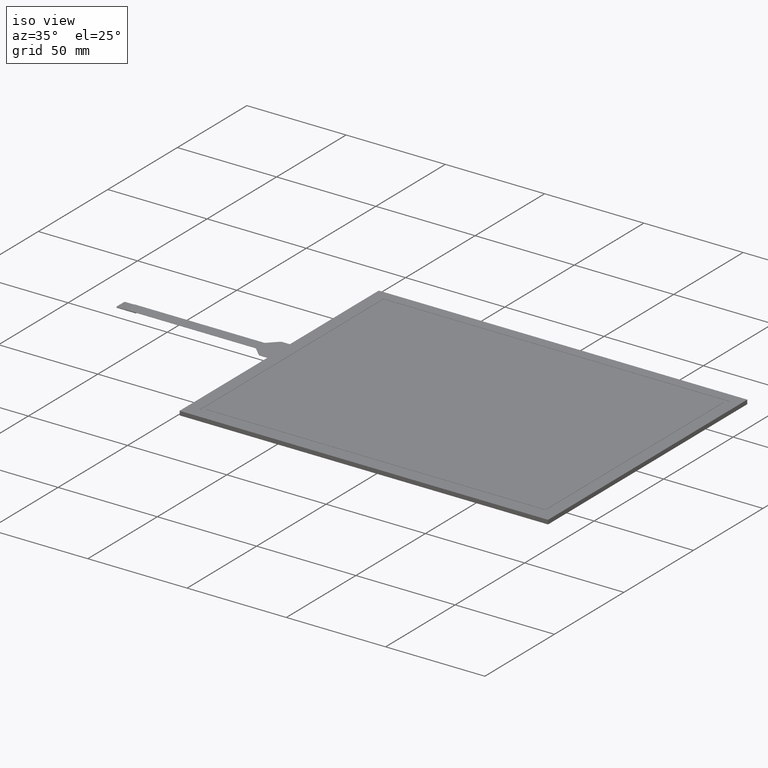
[diagram: clean part render]
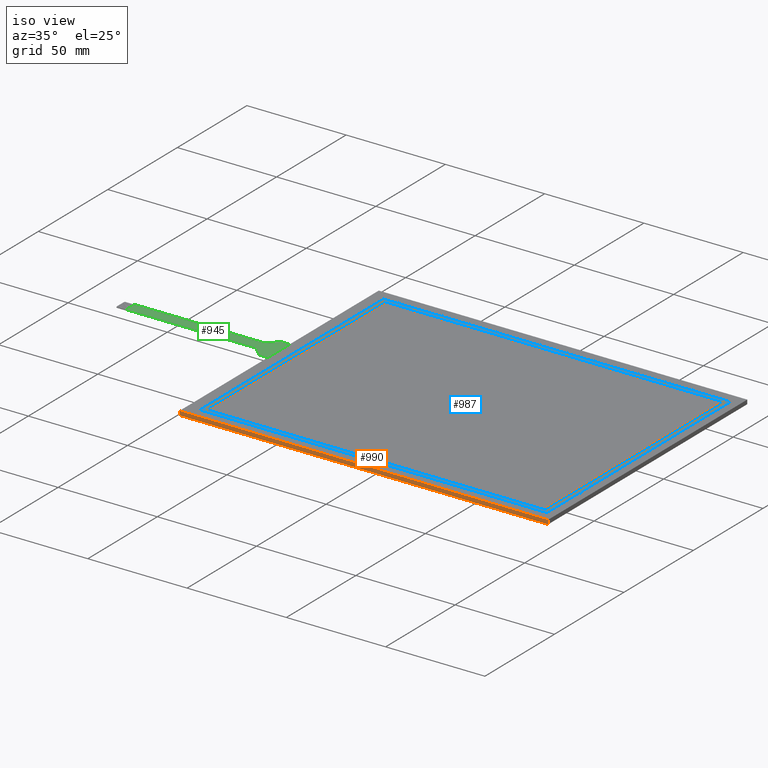
[diagram: same view with three faces highlighted in distinct colors, each labeled with its STEP entity id]
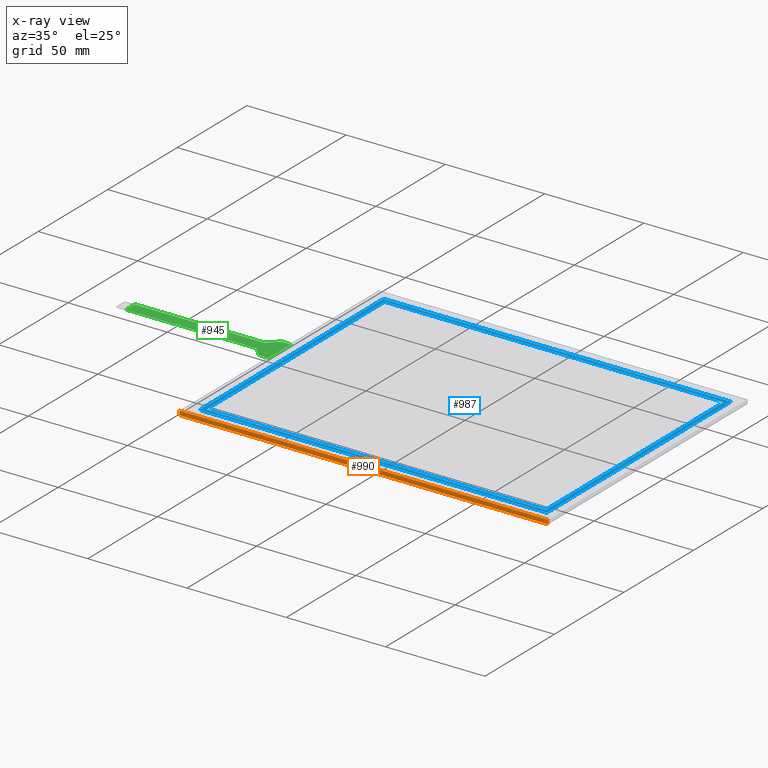
[diagram: x-ray of the same camera — body ghosted, the three highlighted faces saturated]
A machine part, iso view with three faces highlighted in distinct colors.
The next image is the same camera in x-ray (body ghosted, the three faces saturated) — at least one of them is partly hidden behind the body in this view.
Their STEP definitions:

[orange] entity #990 — the highlighted planar face has unit normal (0, -1, 0).
#58=PLANE('',#1073);
#109=FACE_OUTER_BOUND('',#163,.T.);
#163=EDGE_LOOP('',(#918,#919,#920,#921));
#284=LINE('',#1594,#410);
#288=LINE('',#1601,#414);
#289=LINE('',#1604,#415);
#290=LINE('',#1605,#416);
#410=VECTOR('',#1310,10.);
#414=VECTOR('',#1316,10.);
#415=VECTOR('',#1319,10.);
#416=VECTOR('',#1320,10.);
#518=VERTEX_POINT('',#1591);
#519=VERTEX_POINT('',#1593);
#521=VERTEX_POINT('',#1599);
#522=VERTEX_POINT('',#1603);
#652=EDGE_CURVE('',#518,#519,#284,.T.);
#656=EDGE_CURVE('',#518,#521,#288,.T.);
#657=EDGE_CURVE('',#522,#521,#289,.T.);
#658=EDGE_CURVE('',#519,#522,#290,.T.);
#918=ORIENTED_EDGE('',*,*,#652,.F.);
#919=ORIENTED_EDGE('',*,*,#656,.T.);
#920=ORIENTED_EDGE('',*,*,#657,.F.);
#921=ORIENTED_EDGE('',*,*,#658,.F.);
#990=ADVANCED_FACE('',(#109),#58,.T.);
#1073=AXIS2_PLACEMENT_3D('',#1602,#1317,#1318);
#1310=DIRECTION('',(1.,1.91417762866406E-16,0.));
#1316=DIRECTION('',(0.,0.,-1.));
#1317=DIRECTION('center_axis',(1.91417762866406E-16,-1.,0.));
#1318=DIRECTION('ref_axis',(-1.,-1.91417762866406E-16,0.));
#1319=DIRECTION('',(-1.,-1.91417762866406E-16,0.));
#1320=DIRECTION('',(0.,0.,-1.));
#1591=CARTESIAN_POINT('',(-93.65,-71.65,0.));
#1593=CARTESIAN_POINT('',(91.95,-71.65,0.));
#1594=CARTESIAN_POINT('',(-93.65,-71.65,0.));
#1599=CARTESIAN_POINT('',(-93.65,-71.65,-2.1));
#1601=CARTESIAN_POINT('',(-93.65,-71.65,0.));
#1602=CARTESIAN_POINT('Origin',(91.95,-71.65,0.));
#1603=CARTESIAN_POINT('',(91.95,-71.65,-2.1));
#1604=CARTESIAN_POINT('',(-93.65,-71.65,-2.1));
#1605=CARTESIAN_POINT('',(91.95,-71.65,0.));

[blue] entity #987 — the highlighted planar face has unit normal (0, 0, -1).
#15=FACE_BOUND('',#158,.T.);
#55=PLANE('',#1070);
#106=FACE_OUTER_BOUND('',#157,.T.);
#157=EDGE_LOOP('',(#894,#895,#896,#897));
#158=EDGE_LOOP('',(#898,#899,#900,#901));
#260=LINE('',#1545,#386);
#264=LINE('',#1552,#390);
#267=LINE('',#1558,#393);
#269=LINE('',#1561,#395);
#272=LINE('',#1569,#398);
#276=LINE('',#1576,#402);
#279=LINE('',#1582,#405);
#281=LINE('',#1585,#407);
#386=VECTOR('',#1268,10.);
#390=VECTOR('',#1274,10.);
#393=VECTOR('',#1279,10.);
#395=VECTOR('',#1283,10.);
#398=VECTOR('',#1288,10.);
#402=VECTOR('',#1294,10.);
#405=VECTOR('',#1299,10.);
#407=VECTOR('',#1303,10.);
#502=VERTEX_POINT('',#1542);
#503=VERTEX_POINT('',#1544);
#505=VERTEX_POINT('',#1550);
#507=VERTEX_POINT('',#1556);
#510=VERTEX_POINT('',#1566);
#511=VERTEX_POINT('',#1568);
#513=VERTEX_POINT('',#1574);
#515=VERTEX_POINT('',#1580);
#628=EDGE_CURVE('',#502,#503,#260,.T.);
#632=EDGE_CURVE('',#505,#502,#264,.T.);
#635=EDGE_CURVE('',#507,#505,#267,.T.);
#637=EDGE_CURVE('',#503,#507,#269,.T.);
#640=EDGE_CURVE('',#510,#511,#272,.T.);
#644=EDGE_CURVE('',#513,#510,#276,.T.);
#647=EDGE_CURVE('',#515,#513,#279,.T.);
#649=EDGE_CURVE('',#511,#515,#281,.T.);
#894=ORIENTED_EDGE('',*,*,#649,.F.);
#895=ORIENTED_EDGE('',*,*,#640,.F.);
#896=ORIENTED_EDGE('',*,*,#644,.F.);
#897=ORIENTED_EDGE('',*,*,#647,.F.);
#898=ORIENTED_EDGE('',*,*,#637,.F.);
#899=ORIENTED_EDGE('',*,*,#628,.F.);
#900=ORIENTED_EDGE('',*,*,#632,.F.);
#901=ORIENTED_EDGE('',*,*,#635,.F.);
#987=ADVANCED_FACE('',(#106,#15),#55,.F.);
#1070=AXIS2_PLACEMENT_3D('',#1586,#1304,#1305);
#1268=DIRECTION('',(1.,5.19706506553613E-17,0.));
#1274=DIRECTION('',(0.,-1.,0.));
#1279=DIRECTION('',(-1.,5.19706506553613E-17,0.));
#1283=DIRECTION('',(0.,1.,0.));
#1288=DIRECTION('',(-2.68534669599433E-16,1.,0.));
#1294=DIRECTION('',(-1.,-1.52346212641531E-16,0.));
#1299=DIRECTION('',(0.,-1.,0.));
#1303=DIRECTION('',(1.,0.,0.));
#1304=DIRECTION('center_axis',(0.,0.,-1.));
#1305=DIRECTION('ref_axis',(-1.,0.,0.));
#1542=CARTESIAN_POINT('',(-85.45,-64.15,-0.1));
#1544=CARTESIAN_POINT('',(85.45,-64.15,-0.1));
#1545=CARTESIAN_POINT('',(85.45,-64.15,-0.1));
#1550=CARTESIAN_POINT('',(-85.45,64.15,-0.1));
#1552=CARTESIAN_POINT('',(-85.45,-64.15,-0.1));
#1556=CARTESIAN_POINT('',(85.45,64.15,-0.1));
#1558=CARTESIAN_POINT('',(-85.45,64.15,-0.1));
#1561=CARTESIAN_POINT('',(85.45,64.15,-0.1));
#1566=CARTESIAN_POINT('',(-87.45,-66.15,-0.1));
#1568=CARTESIAN_POINT('',(-87.45,66.15,-0.1));
#1569=CARTESIAN_POINT('',(-87.45,66.15,-0.1));
#1574=CARTESIAN_POINT('',(87.45,-66.15,-0.1));
#1576=CARTESIAN_POINT('',(-87.45,-66.15,-0.1));
#1580=CARTESIAN_POINT('',(87.45,66.15,-0.1));
#1582=CARTESIAN_POINT('',(87.45,-66.15,-0.1));
#1585=CARTESIAN_POINT('',(87.45,66.15,-0.1));
#1586=CARTESIAN_POINT('Origin',(0.,8.88178419700125E-15,-0.1));

[green] entity #945 — the highlighted planar face has unit normal (0, 0, 1).
#18=PLANE('',#1018);
#64=FACE_OUTER_BOUND('',#115,.T.);
#115=EDGE_LOOP('',(#666,#667,#668,#669,#670,#671,#672,#673,#674,#675,#676,
#677));
#170=LINE('',#1344,#296);
#171=LINE('',#1348,#297);
#172=LINE('',#1350,#298);
#173=LINE('',#1352,#299);
#174=LINE('',#1356,#300);
#175=LINE('',#1360,#301);
#176=LINE('',#1362,#302);
#177=LINE('',#1363,#303);
#296=VECTOR('',#1090,10.);
#297=VECTOR('',#1093,10.);
#298=VECTOR('',#1094,10.);
#299=VECTOR('',#1095,10.);
#300=VECTOR('',#1098,10.);
#301=VECTOR('',#1101,10.);
#302=VECTOR('',#1102,10.);
#303=VECTOR('',#1103,10.);
#421=CIRCLE('',#1017,1.);
#422=CIRCLE('',#1019,1.);
#423=CIRCLE('',#1020,1.);
#424=CIRCLE('',#1021,1.);
#434=VERTEX_POINT('',#1337);
#435=VERTEX_POINT('',#1339);
#436=VERTEX_POINT('',#1343);
#437=VERTEX_POINT('',#1345);
#438=VERTEX_POINT('',#1347);
#439=VERTEX_POINT('',#1349);
#440=VERTEX_POINT('',#1351);
#441=VERTEX_POINT('',#1353);
#442=VERTEX_POINT('',#1355);
#443=VERTEX_POINT('',#1357);
#444=VERTEX_POINT('',#1359);
#445=VERTEX_POINT('',#1361);
#526=EDGE_CURVE('',#434,#435,#421,.T.);
#528=EDGE_CURVE('',#434,#436,#170,.T.);
#529=EDGE_CURVE('',#437,#436,#422,.T.);
#530=EDGE_CURVE('',#437,#438,#171,.T.);
#531=EDGE_CURVE('',#438,#439,#172,.T.);
#532=EDGE_CURVE('',#439,#440,#173,.T.);
#533=EDGE_CURVE('',#441,#440,#423,.T.);
#534=EDGE_CURVE('',#441,#442,#174,.T.);
#535=EDGE_CURVE('',#443,#442,#424,.T.);
#536=EDGE_CURVE('',#443,#444,#175,.T.);
#537=EDGE_CURVE('',#445,#444,#176,.T.);
#538=EDGE_CURVE('',#445,#435,#177,.T.);
#666=ORIENTED_EDGE('',*,*,#526,.F.);
#667=ORIENTED_EDGE('',*,*,#528,.T.);
#668=ORIENTED_EDGE('',*,*,#529,.F.);
#669=ORIENTED_EDGE('',*,*,#530,.T.);
#670=ORIENTED_EDGE('',*,*,#531,.T.);
#671=ORIENTED_EDGE('',*,*,#532,.T.);
#672=ORIENTED_EDGE('',*,*,#533,.F.);
#673=ORIENTED_EDGE('',*,*,#534,.T.);
#674=ORIENTED_EDGE('',*,*,#535,.F.);
#675=ORIENTED_EDGE('',*,*,#536,.T.);
#676=ORIENTED_EDGE('',*,*,#537,.F.);
#677=ORIENTED_EDGE('',*,*,#538,.T.);
#945=ADVANCED_FACE('',(#64),#18,.T.);
#1017=AXIS2_PLACEMENT_3D('',#1340,#1085,#1086);
#1018=AXIS2_PLACEMENT_3D('',#1342,#1088,#1089);
#1019=AXIS2_PLACEMENT_3D('',#1346,#1091,#1092);
#1020=AXIS2_PLACEMENT_3D('',#1354,#1096,#1097);
#1021=AXIS2_PLACEMENT_3D('',#1358,#1099,#1100);
#1085=DIRECTION('center_axis',(0.,0.,-1.));
#1086=DIRECTION('ref_axis',(-0.382683432365088,0.923879532511287,0.));
#1088=DIRECTION('center_axis',(0.,0.,1.));
#1089=DIRECTION('ref_axis',(1.,0.,0.));
#1090=DIRECTION('',(-0.707106781186549,-0.707106781186546,0.));
#1091=DIRECTION('center_axis',(0.,0.,1.));
#1092=DIRECTION('ref_axis',(0.382683432365088,-0.923879532511287,0.));
#1093=DIRECTION('',(-1.,1.81100209690628E-16,0.));
#1094=DIRECTION('',(0.,-1.,0.));
#1095=DIRECTION('',(1.,4.64561407467264E-16,0.));
#1096=DIRECTION('center_axis',(0.,0.,1.));
#1097=DIRECTION('ref_axis',(0.382683432365091,0.923879532511286,0.));
#1098=DIRECTION('',(0.707106781186547,-0.707106781186548,0.));
#1099=DIRECTION('center_axis',(0.,0.,-1.));
#1100=DIRECTION('ref_axis',(-0.382683432365089,-0.923879532511287,0.));
#1101=DIRECTION('',(1.,4.82705662880504E-16,0.));
#1102=DIRECTION('',(2.47921401172401E-16,-1.,0.));
#1103=DIRECTION('',(-1.,4.82705662880504E-16,0.));
#1337=CARTESIAN_POINT('',(-98.5428932188134,7.73710678118642,-0.188));
#1339=CARTESIAN_POINT('',(-97.8357864376269,8.02999999999987,-0.188));
#1340=CARTESIAN_POINT('Origin',(-97.8357864376269,7.02999999999987,-0.188));
#1342=CARTESIAN_POINT('Origin',(-133.65,0.00499999999992895,-0.188));
#1343=CARTESIAN_POINT('',(-102.857106781187,3.42289321881333,-0.188));
#1344=CARTESIAN_POINT('',(-98.25,8.02999999999987,-0.188));
#1345=CARTESIAN_POINT('',(-103.564213562373,3.12999999999988,-0.188));
#1346=CARTESIAN_POINT('Origin',(-103.564213562373,4.12999999999988,-0.188));
#1347=CARTESIAN_POINT('',(-168.65,3.1299999999999,-0.188));
#1348=CARTESIAN_POINT('',(-103.15,3.12999999999988,-0.188));
#1349=CARTESIAN_POINT('',(-168.65,-3.12000000000004,-0.188));
#1350=CARTESIAN_POINT('',(-168.65,1.56749999999991,-0.188));
#1351=CARTESIAN_POINT('',(-103.564213562373,-3.12,-0.188));
#1352=CARTESIAN_POINT('',(-173.65,-3.12000000000004,-0.188));
#1353=CARTESIAN_POINT('',(-102.857106781187,-3.41289321881347,-0.188));
#1354=CARTESIAN_POINT('Origin',(-103.564213562373,-4.12,-0.188));
#1355=CARTESIAN_POINT('',(-98.5428932188134,-7.72710678118656,-0.188));
#1356=CARTESIAN_POINT('',(-103.15,-3.12,-0.188));
#1357=CARTESIAN_POINT('',(-97.8357864376269,-8.02000000000001,-0.188));
#1358=CARTESIAN_POINT('Origin',(-97.8357864376269,-7.02000000000001,-0.188));
#1359=CARTESIAN_POINT('',(-93.65,-8.02,-0.188));
#1360=CARTESIAN_POINT('',(-98.25,-8.02000000000001,-0.188));
#1361=CARTESIAN_POINT('',(-93.65,8.02999999999986,-0.188));
#1362=CARTESIAN_POINT('',(-93.65,-35.8225,-0.188));
#1363=CARTESIAN_POINT('',(-93.65,8.02999999999986,-0.188));